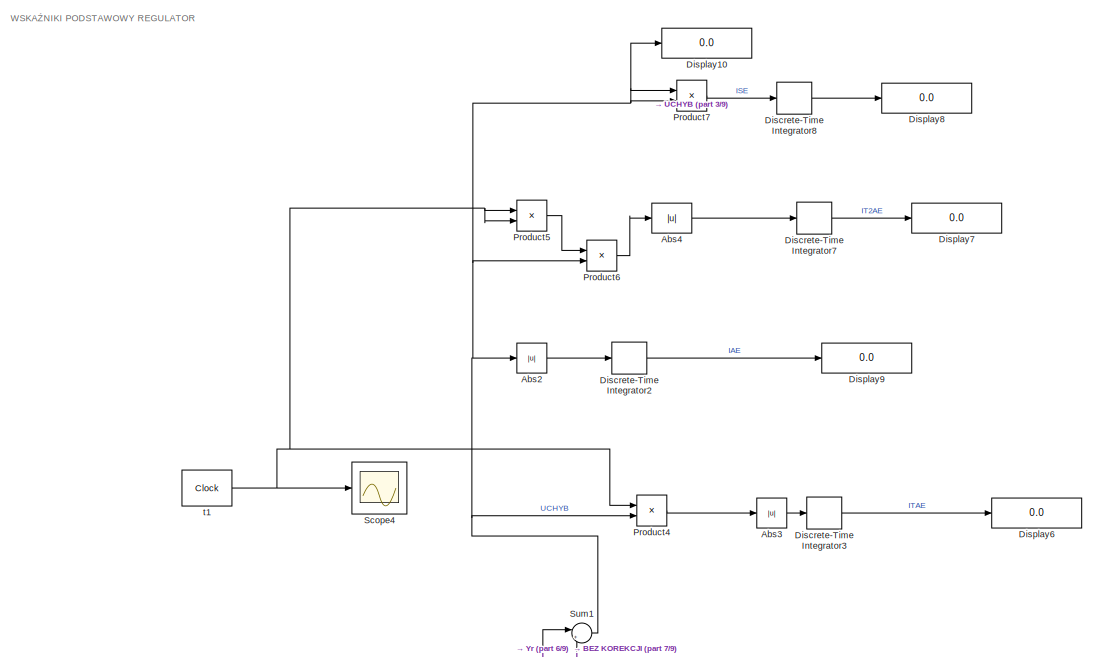
[diagram: root canvas - part 1/9, top left region]
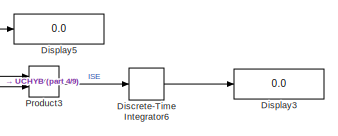
[diagram: root canvas - part 2/9, top right region]
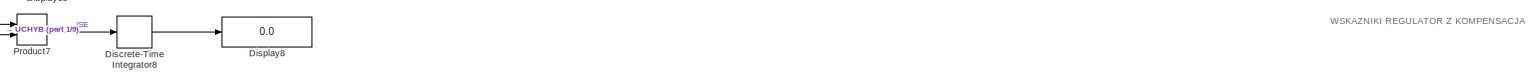
[diagram: root canvas - part 3/9, top center region]
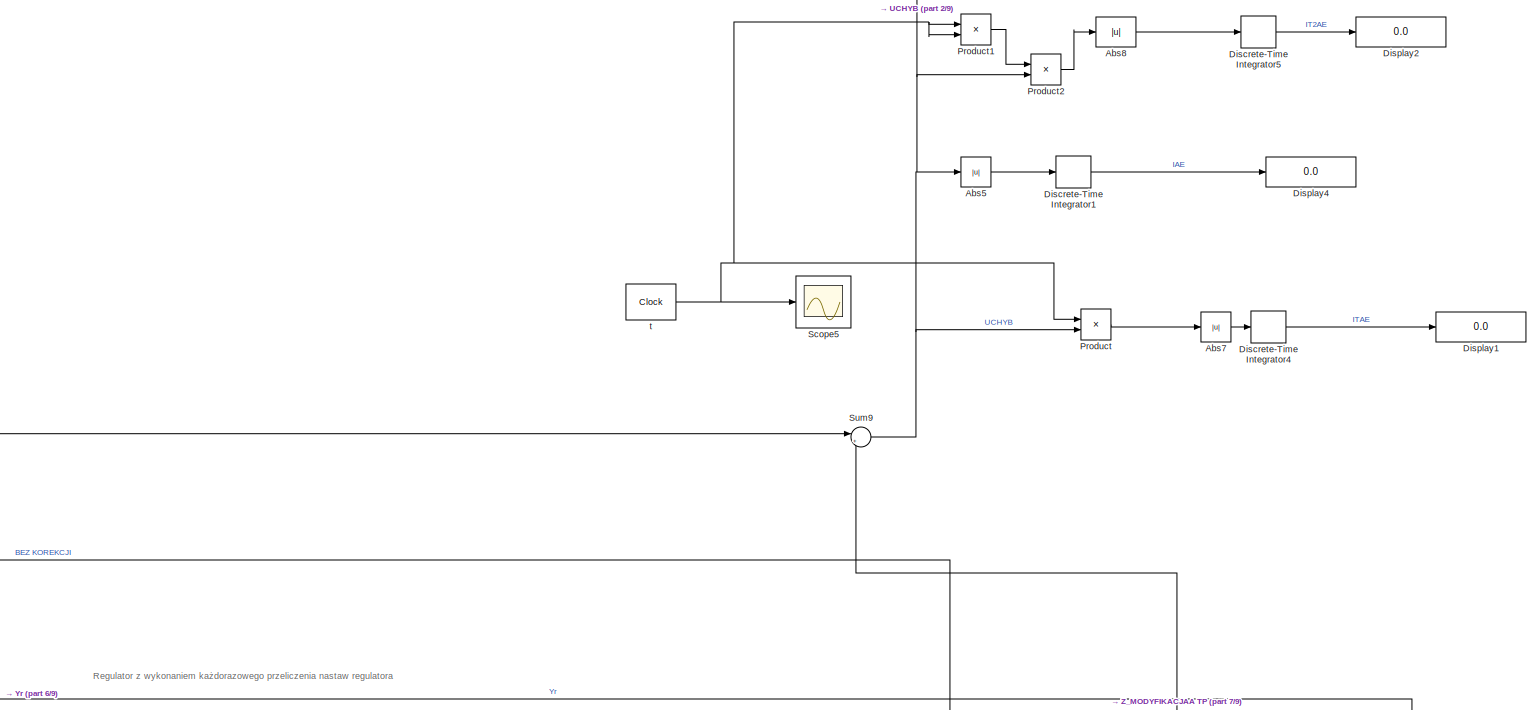
[diagram: root canvas - part 4/9, top right region]
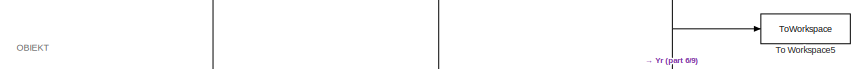
[diagram: root canvas - part 5/9, middle right region]
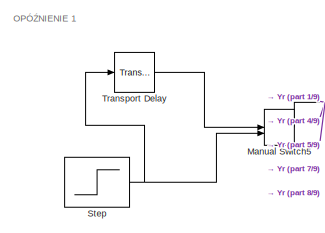
[diagram: root canvas - part 6/9, middle left region]
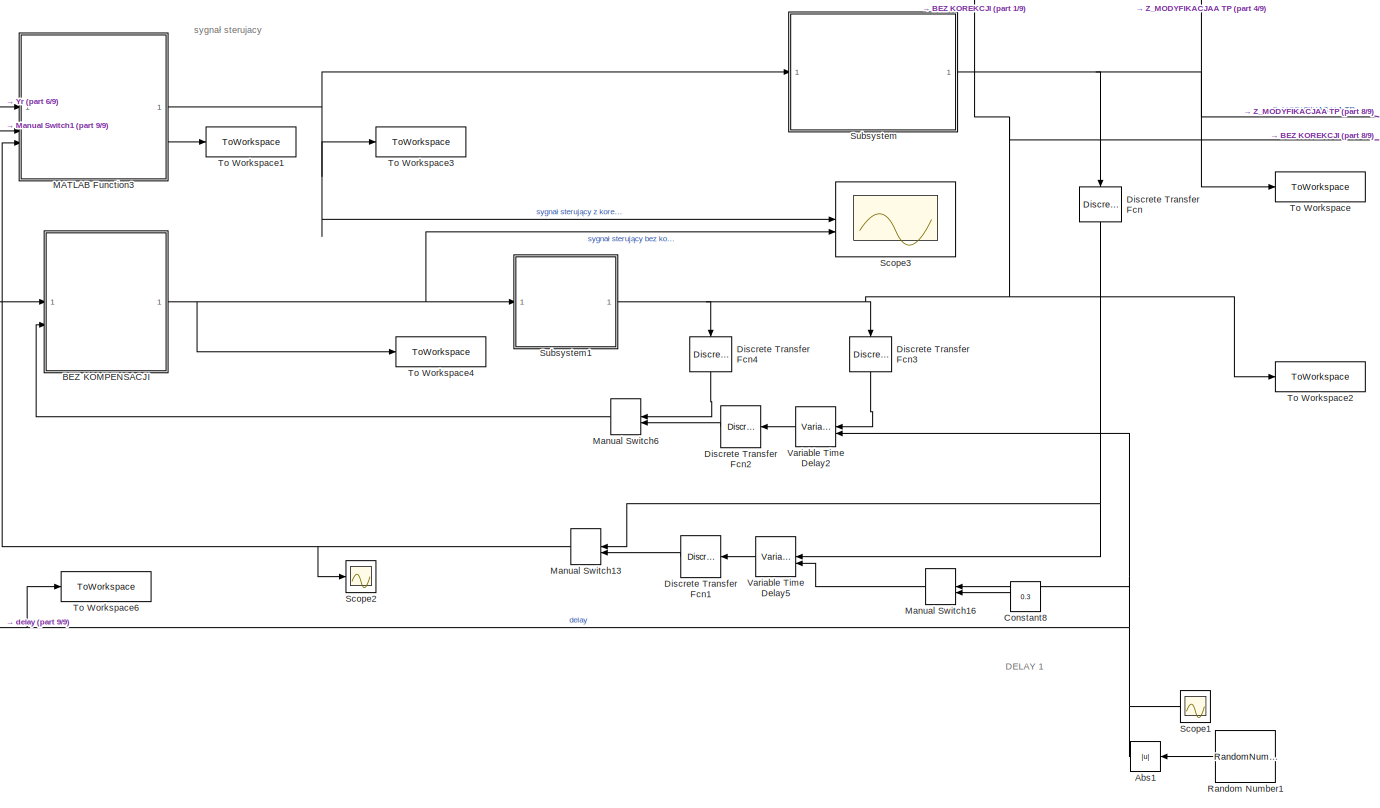
[diagram: root canvas - part 7/9, bottom center region]
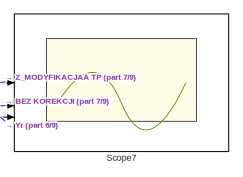
[diagram: root canvas - part 8/9, middle right region]
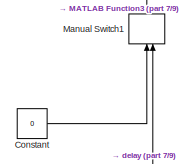
[diagram: root canvas - part 9/9, bottom center region]
MODEL slx_fe22d50b64b3
KIND model
CONFIG AbsTol = auto
CONFIG EnableMultiTasking = off
CONFIG FixedStep = auto
CONFIG MaxStep = auto
CONFIG MinStep = auto
CONFIG RelTol = 1e-3
CONFIG SampleTimeConstraint = Unconstrained
CONFIG SolverName = VariableStepAuto
CONFIG StartTime = 0.0
CONFIG StopTime = 100
BLOCK [Abs] Abs1
  NameLocation = top
  SaturateOnIntegerOverflow = off
BLOCK [Abs] Abs2
  SaturateOnIntegerOverflow = off
BLOCK [Abs] Abs3
  SaturateOnIntegerOverflow = off
BLOCK [Abs] Abs4
  SaturateOnIntegerOverflow = off
BLOCK [Abs] Abs5
  SaturateOnIntegerOverflow = off
BLOCK [Abs] Abs7
  SaturateOnIntegerOverflow = off
BLOCK [Abs] Abs8
  SaturateOnIntegerOverflow = off
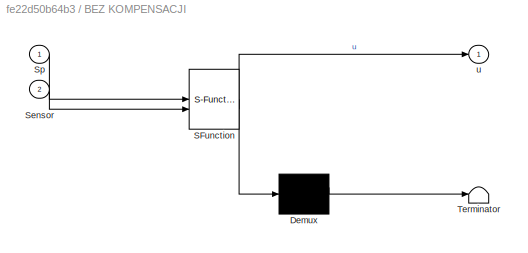
BLOCK [SubSystem] BEZ KOMPENSACJI
  ErrorFcn = Stateflow.Translate.translate
  LibrarySourceBlock = simulink/User-Defined\nFunctions/MATLAB Function
  PermitHierarchicalResolution = ExplicitOnly
  SFBlockType = MATLAB Function
  SystemSampleTime = TPP
  TreatAsAtomicUnit = on
BLOCK [Demux] BEZ KOMPENSACJI/ Demux 
  Outputs = 1
BLOCK [S-Function] BEZ KOMPENSACJI/ SFunction 
  EnableBusSupport = on
  FunctionName = sf_sfun
  PortCounts = [2 2]
  SFcnIsStateOwnerBlock = off
  SFunctionDeploymentMode = off
  Tag = Stateflow S-Function 1
BLOCK [Terminator] BEZ KOMPENSACJI/ Terminator 
BLOCK [Inport] BEZ KOMPENSACJI/Sensor
  Port = 2
BLOCK [Inport] BEZ KOMPENSACJI/Sp
BLOCK [Outport] BEZ KOMPENSACJI/u
BLOCK [Constant] Constant
  Value = 0
BLOCK [Constant] Constant8
  Value = 0.3
BLOCK [DiscreteTransferFcn] Discrete Transfer Fcn
  Denominator = [1]
  InputPortMap = u0
  NameLocation = left
  SampleTime = TPP
BLOCK [DiscreteTransferFcn] Discrete Transfer Fcn1
  Denominator = [1]
  InputPortMap = u0
  NameLocation = top
  SampleTime = TPP
BLOCK [DiscreteTransferFcn] Discrete Transfer Fcn2
  Denominator = [1]
  InputPortMap = u0
  NameLocation = top
  SampleTime = TPP
BLOCK [DiscreteTransferFcn] Discrete Transfer Fcn3
  Denominator = [1]
  InputPortMap = u0
  NameLocation = left
  SampleTime = TPP
BLOCK [DiscreteTransferFcn] Discrete Transfer Fcn4
  Denominator = [1]
  InputPortMap = u0
  NameLocation = left
  SampleTime = TPP
BLOCK [DiscreteIntegrator] Discrete-Time Integrator1
  ICPrevOutput = DiscIntNeverNeededParam
  ICPrevScaledInput = DiscIntNeverNeededParam
  InitialConditionSetting = Auto
  SampleTime = Ts
BLOCK [DiscreteIntegrator] Discrete-Time Integrator2
  ICPrevOutput = DiscIntNeverNeededParam
  ICPrevScaledInput = DiscIntNeverNeededParam
  InitialConditionSetting = Auto
  SampleTime = Ts
BLOCK [DiscreteIntegrator] Discrete-Time Integrator3
  ICPrevOutput = DiscIntNeverNeededParam
  ICPrevScaledInput = DiscIntNeverNeededParam
  InitialConditionSetting = Auto
  SampleTime = Ts
BLOCK [DiscreteIntegrator] Discrete-Time Integrator4
  ICPrevOutput = DiscIntNeverNeededParam
  ICPrevScaledInput = DiscIntNeverNeededParam
  InitialConditionSetting = Auto
  SampleTime = Ts
BLOCK [DiscreteIntegrator] Discrete-Time Integrator5
  ICPrevOutput = DiscIntNeverNeededParam
  ICPrevScaledInput = DiscIntNeverNeededParam
  InitialConditionSetting = Auto
  SampleTime = Ts
BLOCK [DiscreteIntegrator] Discrete-Time Integrator6
  ICPrevOutput = DiscIntNeverNeededParam
  ICPrevScaledInput = DiscIntNeverNeededParam
  InitialConditionSetting = Auto
  SampleTime = Ts
BLOCK [DiscreteIntegrator] Discrete-Time Integrator7
  ICPrevOutput = DiscIntNeverNeededParam
  ICPrevScaledInput = DiscIntNeverNeededParam
  InitialConditionSetting = Auto
  SampleTime = Ts
BLOCK [DiscreteIntegrator] Discrete-Time Integrator8
  ICPrevOutput = DiscIntNeverNeededParam
  ICPrevScaledInput = DiscIntNeverNeededParam
  InitialConditionSetting = Auto
  SampleTime = Ts
BLOCK [Display] Display1
  Decimation = 1
BLOCK [Display] Display10
  Decimation = 1
BLOCK [Display] Display2
  Decimation = 1
BLOCK [Display] Display3
  Decimation = 1
BLOCK [Display] Display4
  Decimation = 1
BLOCK [Display] Display5
  Decimation = 1
BLOCK [Display] Display6
  Decimation = 1
BLOCK [Display] Display7
  Decimation = 1
BLOCK [Display] Display8
  Decimation = 1
BLOCK [Display] Display9
  Decimation = 1
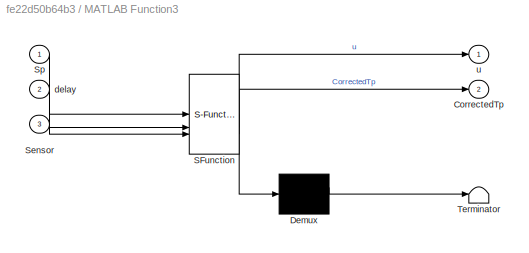
BLOCK [SubSystem] MATLAB Function3
  ErrorFcn = Stateflow.Translate.translate
  LibrarySourceBlock = simulink/User-Defined\nFunctions/MATLAB Function
  PermitHierarchicalResolution = ExplicitOnly
  SFBlockType = MATLAB Function
  SystemSampleTime = TPP
  TreatAsAtomicUnit = on
BLOCK [Demux] MATLAB Function3/ Demux 
  Outputs = 1
BLOCK [S-Function] MATLAB Function3/ SFunction 
  EnableBusSupport = on
  FunctionName = sf_sfun
  PortCounts = [3 3]
  SFcnIsStateOwnerBlock = off
  SFunctionDeploymentMode = off
  Tag = Stateflow S-Function 4
BLOCK [Terminator] MATLAB Function3/ Terminator 
BLOCK [Outport] MATLAB Function3/CorrectedTp
  Port = 2
BLOCK [Inport] MATLAB Function3/Sensor
  Port = 3
BLOCK [Inport] MATLAB Function3/Sp
BLOCK [Inport] MATLAB Function3/delay
  Port = 2
BLOCK [Outport] MATLAB Function3/u
BLOCK [ManualSwitch] Manual Switch1
  CurrentSetting = 0
  NameLocation = left
BLOCK [ManualSwitch] Manual Switch13
  CurrentSetting = 0
BLOCK [ManualSwitch] Manual Switch16
BLOCK [ManualSwitch] Manual Switch5
  CurrentSetting = 0
BLOCK [ManualSwitch] Manual Switch6
  CurrentSetting = 0
BLOCK [Product] Product
BLOCK [Product] Product1
BLOCK [Product] Product2
BLOCK [Product] Product3
BLOCK [Product] Product4
BLOCK [Product] Product5
BLOCK [Product] Product6
BLOCK [Product] Product7
BLOCK [RandomNumber] Random Number1
  Mean = 1
  NameLocation = top
  SampleTime = TPP
  Variance = 0.0001
BLOCK [Scope] Scope1
  Floating = off
  NumInputPorts = 1
  ScopeSpecificationString = Simulink.scopes.TimeScopeBlockCfg('CurrentConfiguration', extmgr.ConfigurationSet(extmgr.Configuration('Core','General UI',true),extmgr.Configuration('Core','Source UI',true),extmgr.Configuration('Sources','WiredSimulink',true,'DataLoggingVariableName','ScopeData1'),extmgr.Configuration('Visuals','Time Domain',true,'SerializedDisplays',{struct('MinYLimReal','0.01294','MaxYLimReal','0.08975','YLabe...<+1362ch>
BLOCK [Scope] Scope2
  Floating = off
  NumInputPorts = 1
  ScopeSpecificationString = Simulink.scopes.TimeScopeBlockCfg('CurrentConfiguration', extmgr.ConfigurationSet(extmgr.Configuration('Core','General UI',true),extmgr.Configuration('Core','Source UI',true),extmgr.Configuration('Sources','WiredSimulink',true,'DataLoggingVariableName','ScopeData1'),extmgr.Configuration('Visuals','Time Domain',true,'SerializedDisplays',{struct('MinYLimReal','-4.39921','MaxYLimReal','39.59288','YLa...<+1370ch>
BLOCK [Scope] Scope3
  Floating = off
  NumInputPorts = 2
  ScopeSpecificationString = Simulink.scopes.TimeScopeBlockCfg('CurrentConfiguration', extmgr.ConfigurationSet(extmgr.Configuration('Core','General UI',true),extmgr.Configuration('Core','Source UI',true),extmgr.Configuration('Sources','WiredSimulink',true,'DataLoggingVariableName','ScopeData2'),extmgr.Configuration('Visuals','Time Domain',true,'SerializedDisplays',{struct('MinYLimReal','-2.96402','MaxYLimReal','3.88342','YLab...<+2900ch>
BLOCK [Scope] Scope4
  Floating = off
  NumInputPorts = 1
  ScopeSpecificationString = Simulink.scopes.TimeScopeBlockCfg('CurrentConfiguration', extmgr.ConfigurationSet(extmgr.Configuration('Core','General UI',true),extmgr.Configuration('Core','Source UI',true),extmgr.Configuration('Sources','WiredSimulink',true,'DataLoggingVariableName','ScopeData2'),extmgr.Configuration('Visuals','Time Domain',true,'SerializedDisplays',{struct('MinYLimReal','-5.00000','MaxYLimReal','45.00000','YLa...<+1418ch>
BLOCK [Scope] Scope5
  Floating = off
  NumInputPorts = 1
  ScopeSpecificationString = Simulink.scopes.TimeScopeBlockCfg('CurrentConfiguration', extmgr.ConfigurationSet(extmgr.Configuration('Core','General UI',true),extmgr.Configuration('Core','Source UI',true),extmgr.Configuration('Sources','WiredSimulink',true,'DataLoggingVariableName','ScopeData1'),extmgr.Configuration('Visuals','Time Domain',true,'SerializedDisplays',{struct('MinYLimReal','-5.00000','MaxYLimReal','45.00000','YLa...<+1418ch>
BLOCK [Scope] Scope7
  Floating = off
  NumInputPorts = 3
  ScopeSpecificationString = Simulink.scopes.TimeScopeBlockCfg('CurrentConfiguration', extmgr.ConfigurationSet(extmgr.Configuration('Core','General UI',true),extmgr.Configuration('Core','Source UI',true),extmgr.Configuration('Sources','WiredSimulink',true,'DataLoggingVariableName','ScopeData3'),extmgr.Configuration('Visuals','Time Domain',true,'SerializedDisplays',{struct('MinYLimReal','-7.27312','MaxYLimReal','65.45807','YLa...<+1561ch>
BLOCK [Step] Step
  After = 25
  SampleTime = TPP
  Time = 0
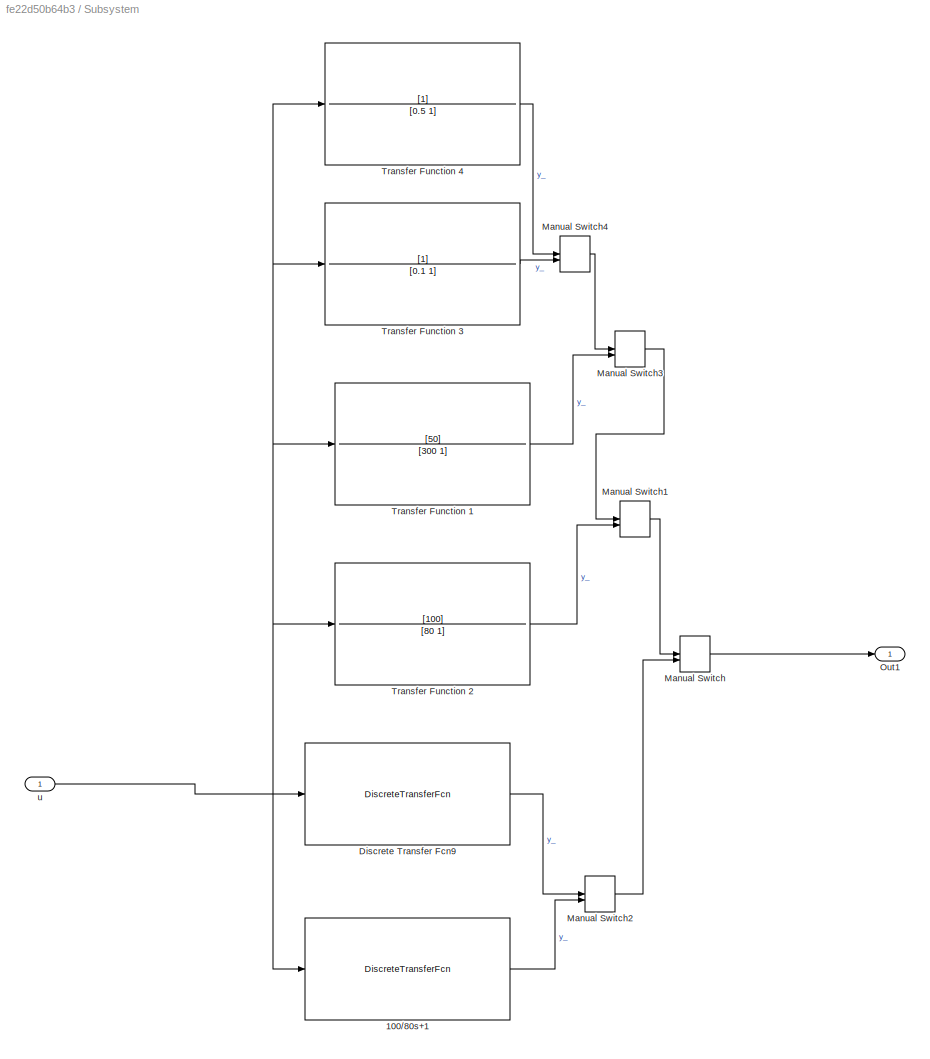
BLOCK [SubSystem] Subsystem
BLOCK [DiscreteTransferFcn] Subsystem/100//80s+1
  Denominator = [1 -0.9988]
  InputPortMap = u0
  Numerator = [0.1249]
  SampleTime = TPP
BLOCK [DiscreteTransferFcn] Subsystem/Discrete Transfer Fcn9
  Denominator = [1 -0.9355]
  InputPortMap = u0
  Numerator = [0.129]
  SampleTime = TPP
BLOCK [ManualSwitch] Subsystem/Manual Switch
BLOCK [ManualSwitch] Subsystem/Manual Switch1
  CurrentSetting = 0
BLOCK [ManualSwitch] Subsystem/Manual Switch2
  CurrentSetting = 0
BLOCK [ManualSwitch] Subsystem/Manual Switch3
BLOCK [ManualSwitch] Subsystem/Manual Switch4
BLOCK [Outport] Subsystem/Out1
BLOCK [TransferFcn] Subsystem/Transfer Function 1
  Denominator = [300 1]
  Numerator = [50]
BLOCK [TransferFcn] Subsystem/Transfer Function 2
  Denominator = [80 1]
  Numerator = [100]
BLOCK [TransferFcn] Subsystem/Transfer Function 3
  Denominator = [0.1 1]
BLOCK [TransferFcn] Subsystem/Transfer Function 4
  Denominator = [0.5 1]
BLOCK [Inport] Subsystem/u
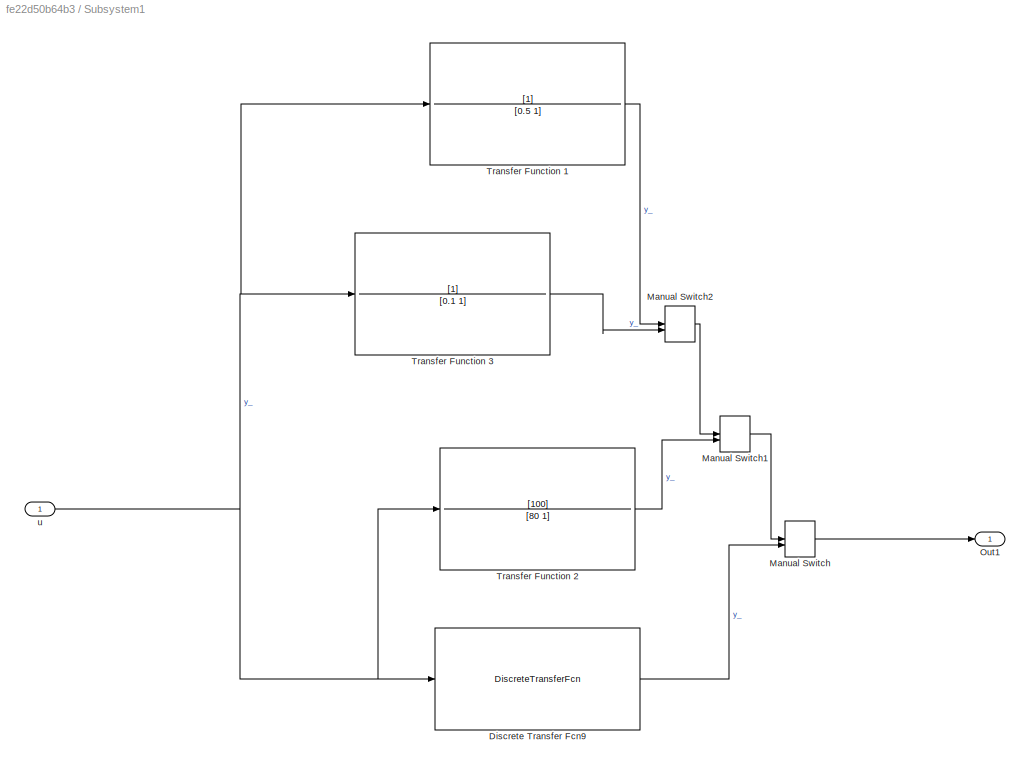
BLOCK [SubSystem] Subsystem1
BLOCK [DiscreteTransferFcn] Subsystem1/Discrete Transfer Fcn9
  Denominator = [1 -0.9355]
  InputPortMap = u0
  Numerator = [0.129]
  SampleTime = TPP
BLOCK [ManualSwitch] Subsystem1/Manual Switch
BLOCK [ManualSwitch] Subsystem1/Manual Switch1
  CurrentSetting = 0
BLOCK [ManualSwitch] Subsystem1/Manual Switch2
BLOCK [Outport] Subsystem1/Out1
BLOCK [TransferFcn] Subsystem1/Transfer Function 1
  Denominator = [0.5 1]
BLOCK [TransferFcn] Subsystem1/Transfer Function 2
  Denominator = [80 1]
  Numerator = [100]
BLOCK [TransferFcn] Subsystem1/Transfer Function 3
  Denominator = [0.1 1]
BLOCK [Inport] Subsystem1/u
BLOCK [Sum] Sum1
  Inputs = |+-
BLOCK [Sum] Sum9
  Inputs = |+-
BLOCK [ToWorkspace] To Workspace
  FixptAsFi = on
  MaxDataPoints = inf
  SampleTime = -1
  SaveFormat = Timeseries
  VariableName = Sensor_
BLOCK [ToWorkspace] To Workspace1
  FixptAsFi = on
  MaxDataPoints = inf
  SampleTime = -1
  SaveFormat = Timeseries
  VariableName = nowe_TP
BLOCK [ToWorkspace] To Workspace2
  FixptAsFi = on
  MaxDataPoints = inf
  SampleTime = -1
  SaveFormat = Timeseries
  VariableName = PID_BEZ
BLOCK [ToWorkspace] To Workspace3
  FixptAsFi = on
  MaxDataPoints = inf
  SampleTime = -1
  SaveFormat = Timeseries
  VariableName = z_kompensacja_u
BLOCK [ToWorkspace] To Workspace4
  FixptAsFi = on
  MaxDataPoints = inf
  SampleTime = -1
  SaveFormat = Timeseries
  VariableName = bez_kompensacji
BLOCK [ToWorkspace] To Workspace5
  FixptAsFi = on
  MaxDataPoints = inf
  SampleTime = -1
  SaveFormat = Timeseries
  VariableName = SP
BLOCK [ToWorkspace] To Workspace6
  FixptAsFi = on
  MaxDataPoints = inf
  SampleTime = -1
  SaveFormat = Timeseries
  VariableName = DELAY
BLOCK [TransportDelay] Transport Delay
  DelayTime = 0
  NameLocation = top
BLOCK [VariableTransportDelay] Variable Time Delay2
  MaximumDelay = 10
BLOCK [VariableTransportDelay] Variable Time Delay5
  MaximumDelay = 10
BLOCK [Clock] t
  Decimation = 1
BLOCK [Clock] t1
  Decimation = 1
ANNOTATION (root): OBIEKT
ANNOTATION (root): Regulator z wykonaniem każdorazowego przeliczenia nastaw regulatora
ANNOTATION (root): DELAY 1
ANNOTATION (root): OPÓŹNIENIE 1
ANNOTATION (root): WSKAZNIKI REGULATOR Z KOMPENSACJA
ANNOTATION (root): WSKAŹNIKI PODSTAWOWY REGULATOR
ANNOTATION (root): sygnał sterujacy
NET Abs1:1 -> Manual Switch16:1, Manual Switch1:2, Scope1:1, To Workspace6:1, Variable Time Delay2:2
LINE Abs2:1 -> Discrete-Time Integrator2:1
LINE Abs3:1 -> Discrete-Time Integrator3:1
LINE Abs4:1 -> Discrete-Time Integrator7:1
LINE Abs5:1 -> Discrete-Time Integrator1:1
LINE Abs7:1 -> Discrete-Time Integrator4:1
LINE Abs8:1 -> Discrete-Time Integrator5:1
NET BEZ KOMPENSACJI:1 -> Scope3:2, Subsystem1:1, To Workspace4:1
LINE Constant8:1 -> Manual Switch16:2
LINE Constant:1 -> Manual Switch1:1
LINE Discrete Transfer Fcn1:1 -> Manual Switch13:2
LINE Discrete Transfer Fcn2:1 -> Manual Switch6:2
LINE Discrete Transfer Fcn3:1 -> Variable Time Delay2:1
LINE Discrete Transfer Fcn4:1 -> Manual Switch6:1
NET Discrete Transfer Fcn:1 -> Manual Switch13:1, Variable Time Delay5:1
LINE Discrete-Time Integrator1:1 -> Display4:1
LINE Discrete-Time Integrator2:1 -> Display9:1
LINE Discrete-Time Integrator3:1 -> Display6:1
LINE Discrete-Time Integrator4:1 -> Display1:1
LINE Discrete-Time Integrator5:1 -> Display2:1
LINE Discrete-Time Integrator6:1 -> Display3:1
LINE Discrete-Time Integrator7:1 -> Display7:1
LINE Discrete-Time Integrator8:1 -> Display8:1
NET MATLAB Function3:1 -> Scope3:1, Subsystem:1, To Workspace3:1
LINE MATLAB Function3:2 -> To Workspace1:1
NET Manual Switch13:1 -> MATLAB Function3:3, Scope2:1
LINE Manual Switch16:1 -> Variable Time Delay5:2
LINE Manual Switch1:1 -> MATLAB Function3:2
NET Manual Switch5:1 -> BEZ KOMPENSACJI:1, MATLAB Function3:1, Scope7:3, Sum1:1, Sum9:1, To Workspace5:1
LINE Manual Switch6:1 -> BEZ KOMPENSACJI:2
LINE Product1:1 -> Product2:1
LINE Product2:1 -> Abs8:1
LINE Product3:1 -> Discrete-Time Integrator6:1
LINE Product4:1 -> Abs3:1
LINE Product5:1 -> Product6:1
LINE Product6:1 -> Abs4:1
LINE Product7:1 -> Discrete-Time Integrator8:1
LINE Product:1 -> Abs7:1
LINE Random Number1:1 -> Abs1:1
NET Step:1 -> Manual Switch5:2, Transport Delay:1
LINE Subsystem/100//80s+1:1 -> Subsystem/Manual Switch2:2
LINE Subsystem/Discrete Transfer Fcn9:1 -> Subsystem/Manual Switch2:1
LINE Subsystem/Manual Switch1:1 -> Subsystem/Manual Switch:1
LINE Subsystem/Manual Switch2:1 -> Subsystem/Manual Switch:2
LINE Subsystem/Manual Switch3:1 -> Subsystem/Manual Switch1:1
LINE Subsystem/Manual Switch4:1 -> Subsystem/Manual Switch3:1
LINE Subsystem/Manual Switch:1 -> Subsystem/Out1:1
LINE Subsystem/Transfer Function 1:1 -> Subsystem/Manual Switch3:2
LINE Subsystem/Transfer Function 2:1 -> Subsystem/Manual Switch1:2
LINE Subsystem/Transfer Function 3:1 -> Subsystem/Manual Switch4:2
LINE Subsystem/Transfer Function 4:1 -> Subsystem/Manual Switch4:1
NET Subsystem/u:1 -> Subsystem/100//80s+1:1, Subsystem/Discrete Transfer Fcn9:1, Subsystem/Transfer Function 1:1, Subsystem/Transfer Function 2:1, Subsystem/Transfer Function 3:1, Subsystem/Transfer Function 4:1
LINE Subsystem1/Discrete Transfer Fcn9:1 -> Subsystem1/Manual Switch:2
LINE Subsystem1/Manual Switch1:1 -> Subsystem1/Manual Switch:1
LINE Subsystem1/Manual Switch2:1 -> Subsystem1/Manual Switch1:1
LINE Subsystem1/Manual Switch:1 -> Subsystem1/Out1:1
LINE Subsystem1/Transfer Function 1:1 -> Subsystem1/Manual Switch2:1
LINE Subsystem1/Transfer Function 2:1 -> Subsystem1/Manual Switch1:2
LINE Subsystem1/Transfer Function 3:1 -> Subsystem1/Manual Switch2:2
NET Subsystem1/u:1 -> Subsystem1/Discrete Transfer Fcn9:1, Subsystem1/Transfer Function 1:1, Subsystem1/Transfer Function 2:1, Subsystem1/Transfer Function 3:1
NET Subsystem1:1 -> Discrete Transfer Fcn3:1, Discrete Transfer Fcn4:1, Scope7:2, Sum1:2, To Workspace2:1
NET Subsystem:1 -> Discrete Transfer Fcn:1, Scope7:1, Sum9:2, To Workspace:1
NET Sum1:1 -> Abs2:1, Display10:1, Product4:2, Product6:2, Product7:1, Product7:2
NET Sum9:1 -> Abs5:1, Display5:1, Product2:2, Product3:1, Product3:2, Product:2
LINE Transport Delay:1 -> Manual Switch5:1
LINE Variable Time Delay2:1 -> Discrete Transfer Fcn2:1
LINE Variable Time Delay5:1 -> Discrete Transfer Fcn1:1
NET t1:1 -> Product4:1, Product5:1, Product5:2, Scope4:1
NET t:1 -> Product1:1, Product1:2, Product:1, Scope5:1
note: NET lines group one-source signal fan-out (src -> all destinations, sorted); 1:1 wires keep LINE
CHART BEZ KOMPENSACJI states=1 transitions=1
  STATE_LABEL 'eML_blk_kernel()'
  STATE_LABEL 'SCRIPT:\nfunction u= fcn(Sp,Sensor) %wyjscie = funkcja(wejscia)\npersistent init e2 e1 u2 u1 ku1 ku2 ke0 ke1 ke2 ;\n\nif isempty(init) %wykonuje się tylko raz\n    %NASTAWY WOLNO ZMIENNY\nKp = 0.0975043176181261;\nKi =0.00404938736460088;\nKd = 0.148625801524361;\nFCoef = 0.191342781331139;\n\n\n%NASTAWY SZYBKI\n% Kp=0.551095850914855\n% Ki=1.79030794942895;\n% Kd=0\n% FCoef=2.74256026182305\n\n%NASTAWY 0.5s\n% Kp=0...<+762ch>'
CHART MATLAB Function3 states=1 transitions=1
  STATE_LABEL 'eML_blk_kernel()'
  STATE_LABEL 'SCRIPT:\n function [u,CorrectedTp] = PID(Sp,delay,Sensor) %wyjscie = funkcja(wejscia)\npersistent init e2 e1 u2 u1 ku1 ku2 ke0 ke1 ke2 actualTp i time_vec previousTp Kp Ki Kd FCoef first_iteration;\n\nif isempty(init) %wykonuje się tylko raz\n% Kp =0.00279989495191504;\n% Ki =0.0559978990383007;\n% Kd = 0;\n% FCoef = 100;\n\n%NASTAWY AUTO TUNE SZYBKI 1/0.1s+1!!!\n% \n% Kp=0.551095850914855;\n% Ki=1.79030794942...<+2059ch>'
CHART  states=0 transitions=0
CHART  states=0 transitions=0
